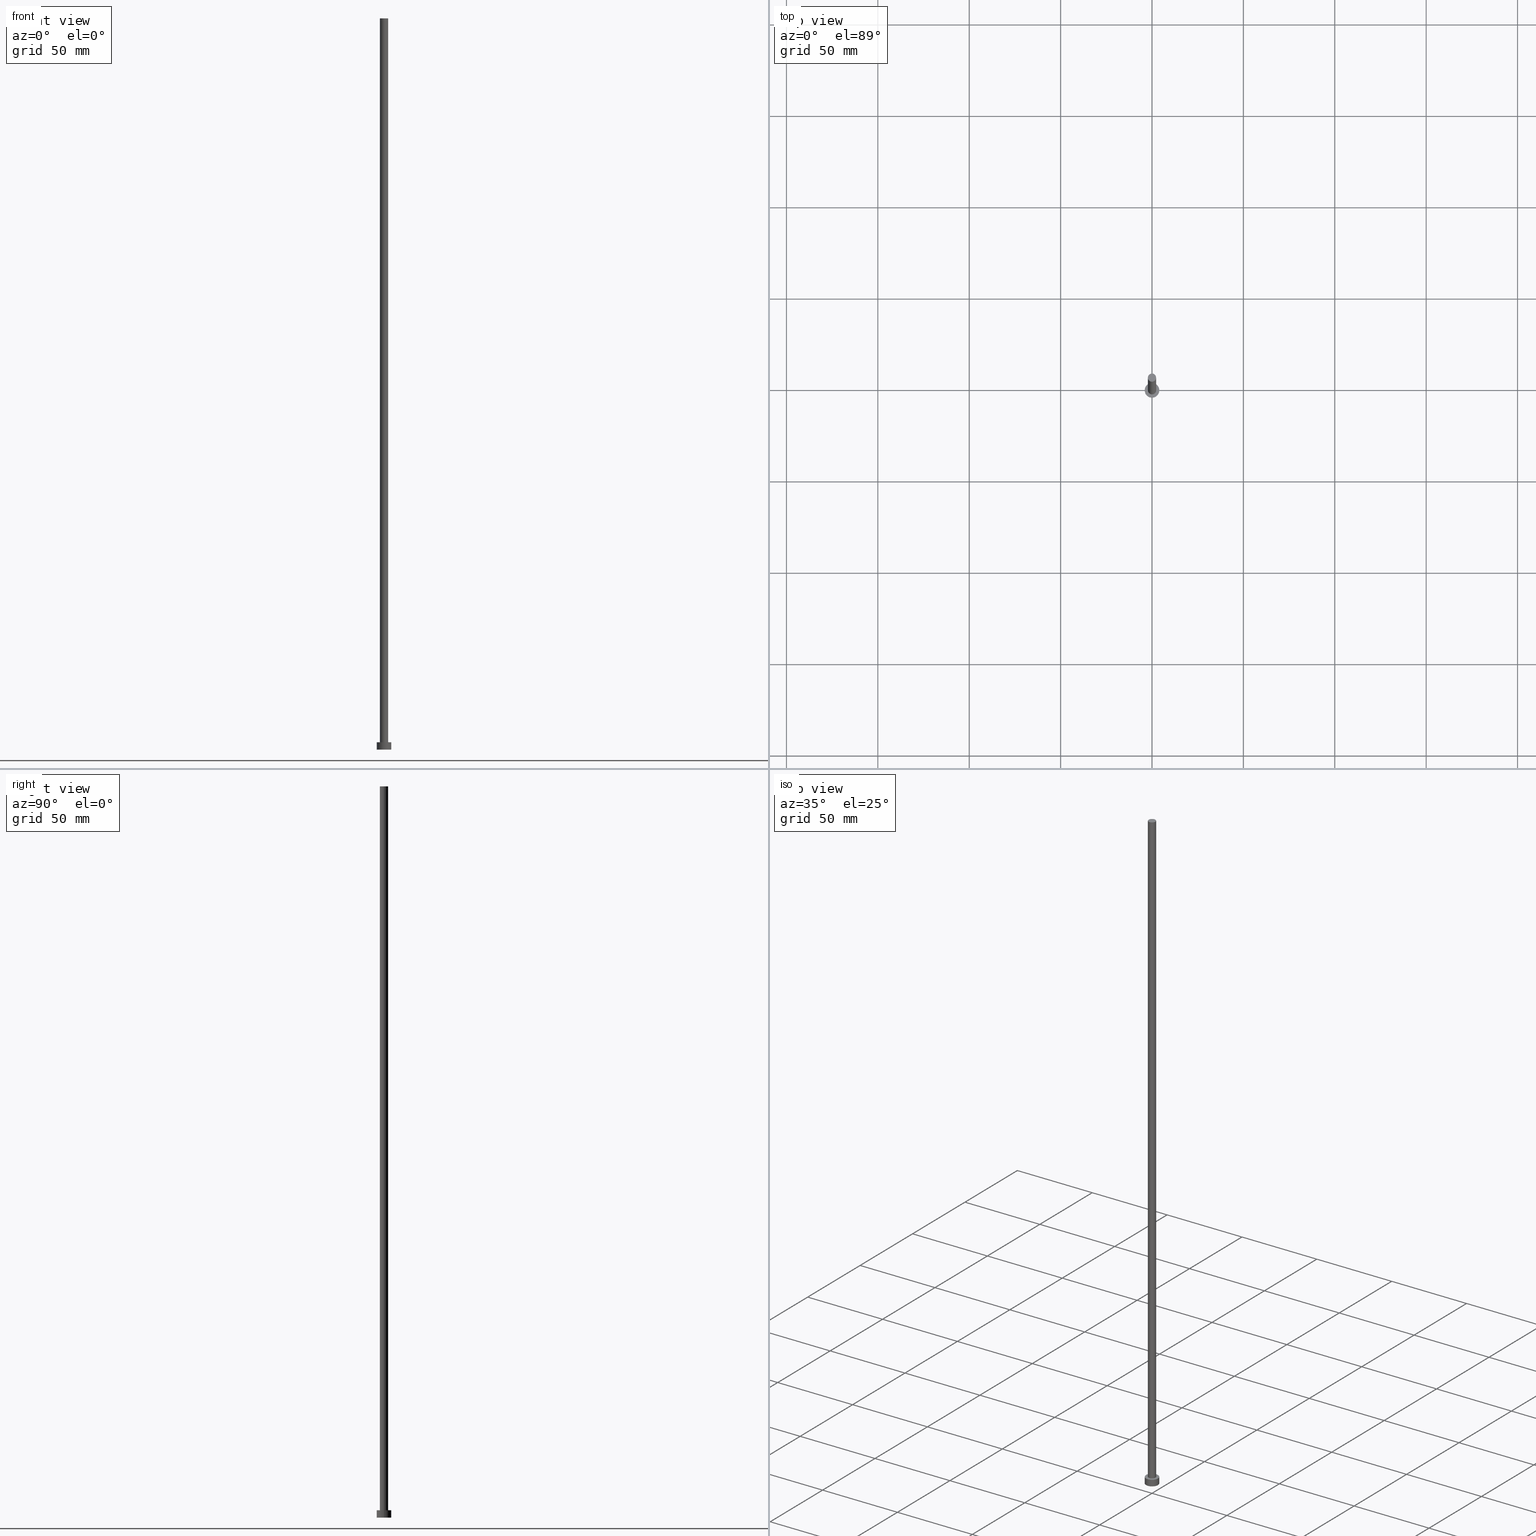
[diagram: canonical four-view strip — front | top / right | iso, engineering-drawing reading convention]
A machine part, canonical four-view strip (front | top / right | iso — engineering-drawing reading convention). The complete STEP part file that produces these views, byte-faithful:
ISO-10303-21;
HEADER;
FILE_DESCRIPTION (( 'STEP AP203' ),
    '1' );
FILE_NAME ('a4cc.STEP',
    '2023-02-13T16:19:54',
    ( '' ),
    ( '' ),
    'SwSTEP 2.0',
    'SolidWorks 2019',
    '' );
FILE_SCHEMA (( 'CONFIG_CONTROL_DESIGN' ));
ENDSEC;

DATA;
#1 = FACE_OUTER_BOUND ( 'NONE', #206, .T. ) ;
#2 = CC_DESIGN_DATE_AND_TIME_ASSIGNMENT ( #50, #146, ( #47 ) ) ;
#3 = APPROVAL_DATE_TIME ( #62, #42 ) ;
#4 = CARTESIAN_POINT ( 'NONE',  ( 4.000000000000000000, 4.898587196589412829E-16, 0.000000000000000000 ) ) ;
#5 = APPROVAL_PERSON_ORGANIZATION ( #176, #42, #59 ) ;
#6 = PERSON ( 'NEUR�EN�', 'NEUR�EN�', 'NEUR�EN�', ('NEUR�EN�'), ('NEUR�EN�'), ('NEUR�EN�') ) ;
#7 = AXIS2_PLACEMENT_3D ( 'NONE', #199, #231, #76 ) ;
#8 = CARTESIAN_POINT ( 'NONE',  ( -2.250000000000000000, 0.000000000000000000, 400.0000000000000000 ) ) ;
#9 = DIRECTION ( 'NONE',  ( -0.000000000000000000, -0.000000000000000000, -1.000000000000000000 ) ) ;
#10 = FACE_OUTER_BOUND ( 'NONE', #209, .T. ) ;
#11 = DIRECTION ( 'NONE',  ( 0.000000000000000000, 0.000000000000000000, 1.000000000000000000 ) ) ;
#12 = VERTEX_POINT ( 'NONE', #109 ) ;
#13 = APPLICATION_PROTOCOL_DEFINITION ( 'international standard', 'config_control_design', 1994, #175 ) ;
#14 = APPROVAL ( #110, 'NEUR�EN�' ) ;
#15 = ORIENTED_EDGE ( 'NONE', *, *, #138, .F. ) ;
#16 = ORIENTED_EDGE ( 'NONE', *, *, #250, .F. ) ;
#17 = CIRCLE ( 'NONE', #174, 4.000000000000000000 ) ;
#18 = DIRECTION ( 'NONE',  ( 1.000000000000000000, 0.000000000000000000, 0.000000000000000000 ) ) ;
#19 = LINE ( 'NONE', #77, #202 ) ;
#20 = MANIFOLD_SOLID_BREP ( 'P�idat vysunut�m3', #184 ) ;
#21 = AXIS2_PLACEMENT_3D ( 'NONE', #161, #234, #236 ) ;
#22 = DIRECTION ( 'NONE',  ( -0.000000000000000000, -0.000000000000000000, -1.000000000000000000 ) ) ;
#23 = ADVANCED_FACE ( 'NONE', ( #73 ), #37, .T. ) ;
#24 = CARTESIAN_POINT ( 'NONE',  ( 0.000000000000000000, 0.000000000000000000, 400.0000000000000000 ) ) ;
#25 = LOCAL_TIME ( 17, 19, 54.00000000000000000, #171 ) ;
#26 = ADVANCED_FACE ( 'NONE', ( #10 ), #88, .T. ) ;
#27 = ORIENTED_EDGE ( 'NONE', *, *, #98, .T. ) ;
#28 = DIRECTION ( 'NONE',  ( -0.000000000000000000, -0.000000000000000000, -1.000000000000000000 ) ) ;
#29 = ADVANCED_FACE ( 'NONE', ( #51 ), #126, .T. ) ;
#30 = EDGE_LOOP ( 'NONE', ( #53, #165, #204, #107 ) ) ;
#31 = AXIS2_PLACEMENT_3D ( 'NONE', #60, #197, #63 ) ;
#32 = PERSON_AND_ORGANIZATION_ROLE ( 'classification_officer' ) ;
#33 = VERTEX_POINT ( 'NONE', #4 ) ;
#34 = AXIS2_PLACEMENT_3D ( 'NONE', #220, #200, #208 ) ;
#35 = AXIS2_PLACEMENT_3D ( 'NONE', #94, #179, #177 ) ;
#36 = ORIENTED_EDGE ( 'NONE', *, *, #57, .F. ) ;
#37 = CYLINDRICAL_SURFACE ( 'NONE', #121, 2.250000000000000000 ) ;
#38 = CIRCLE ( 'NONE', #35, 2.250000000000000000 ) ;
#39 = CC_DESIGN_SECURITY_CLASSIFICATION ( #74, ( #67 ) ) ;
#40 = DIRECTION ( 'NONE',  ( -0.000000000000000000, -0.000000000000000000, -1.000000000000000000 ) ) ;
#41 = CARTESIAN_POINT ( 'NONE',  ( 0.000000000000000000, 0.000000000000000000, 0.000000000000000000 ) ) ;
#42 = APPROVAL ( #181, 'NEUR�EN�' ) ;
#43 = PLANE ( 'NONE',  #7 ) ;
#44 = DIRECTION ( 'NONE',  ( 1.000000000000000000, 0.000000000000000000, -0.000000000000000000 ) ) ;
#45 = EDGE_LOOP ( 'NONE', ( #65, #153 ) ) ;
#46 = DIRECTION ( 'NONE',  ( -0.000000000000000000, -0.000000000000000000, -1.000000000000000000 ) ) ;
#47 = PRODUCT_DEFINITION ( 'NEZN�M�', '', #67, #118 ) ;
#48 = PERSON_AND_ORGANIZATION ( #6, #103 ) ;
#49 = AXIS2_PLACEMENT_3D ( 'NONE', #229, #11, #187 ) ;
#50 = DATE_AND_TIME ( #173, #198 ) ;
#51 = FACE_OUTER_BOUND ( 'NONE', #201, .T. ) ;
#52 = APPROVAL_DATE_TIME ( #90, #14 ) ;
#53 = ORIENTED_EDGE ( 'NONE', *, *, #101, .F. ) ;
#54 = PERSON_AND_ORGANIZATION ( #6, #103 ) ;
#55 = ORIENTED_EDGE ( 'NONE', *, *, #239, .T. ) ;
#56 = ORIENTED_EDGE ( 'NONE', *, *, #141, .F. ) ;
#57 = EDGE_CURVE ( 'NONE', #120, #163, #213, .T. ) ;
#58 = AXIS2_PLACEMENT_3D ( 'NONE', #154, #116, #157 ) ;
#59 = APPROVAL_ROLE ( '' ) ;
#60 = CARTESIAN_POINT ( 'NONE',  ( 0.000000000000000000, 0.000000000000000000, 4.000000000000000000 ) ) ;
#61 = ADVANCED_FACE ( 'NONE', ( #1 ), #79, .T. ) ;
#62 = DATE_AND_TIME ( #194, #218 ) ;
#63 = DIRECTION ( 'NONE',  ( -1.000000000000000000, 0.000000000000000000, 0.000000000000000000 ) ) ;
#64 = CIRCLE ( 'NONE', #21, 4.000000000000000000 ) ;
#65 = ORIENTED_EDGE ( 'NONE', *, *, #243, .F. ) ;
#66 = ORIENTED_EDGE ( 'NONE', *, *, #101, .T. ) ;
#67 = PRODUCT_DEFINITION_FORMATION_WITH_SPECIFIED_SOURCE ( 'LIBOVOLN�', '', #252, .NOT_KNOWN. ) ;
#68 = ADVANCED_FACE ( 'NONE', ( #195 ), #235, .T. ) ;
#69 = CARTESIAN_POINT ( 'NONE',  ( 0.000000000000000000, 0.000000000000000000, 4.000000000000000000 ) ) ;
#70 = APPROVAL_ROLE ( '' ) ;
#71 = DIRECTION ( 'NONE',  ( -1.000000000000000000, 0.000000000000000000, 0.000000000000000000 ) ) ;
#72 = CALENDAR_DATE ( 2023, 13, 2 ) ;
#73 = FACE_OUTER_BOUND ( 'NONE', #30, .T. ) ;
#74 = SECURITY_CLASSIFICATION ( '', '', #122 ) ;
#75 = DATE_AND_TIME ( #247, #170 ) ;
#76 = DIRECTION ( 'NONE',  ( 1.000000000000000000, 0.000000000000000000, -0.000000000000000000 ) ) ;
#77 = CARTESIAN_POINT ( 'NONE',  ( -4.000000000000000000, 0.000000000000000000, 4.000000000000000000 ) ) ;
#78 = CARTESIAN_POINT ( 'NONE',  ( 2.250000000000000000, 2.755455298081544285E-16, 400.0000000000000000 ) ) ;
#79 = CYLINDRICAL_SURFACE ( 'NONE', #96, 2.250000000000000000 ) ;
#80 = CARTESIAN_POINT ( 'NONE',  ( 0.000000000000000000, 0.000000000000000000, 400.0000000000000000 ) ) ;
#81 = DIRECTION ( 'NONE',  ( 0.000000000000000000, 0.000000000000000000, 1.000000000000000000 ) ) ;
#82 = ORIENTED_EDGE ( 'NONE', *, *, #243, .T. ) ;
#83 = CC_DESIGN_PERSON_AND_ORGANIZATION_ASSIGNMENT ( #48, #226, ( #67 ) ) ;
#84 = CC_DESIGN_APPROVAL ( #42, ( #74 ) ) ;
#85 = ADVANCED_FACE ( 'NONE', ( #139 ), #43, .F. ) ;
#86 = CARTESIAN_POINT ( 'NONE',  ( 0.000000000000000000, 0.000000000000000000, 4.000000000000000000 ) ) ;
#87 = APPROVAL_ROLE ( '' ) ;
#88 = CYLINDRICAL_SURFACE ( 'NONE', #167, 4.000000000000000000 ) ;
#89 = APPLICATION_PROTOCOL_DEFINITION ( 'international standard', 'config_control_design', 1994, #212 ) ;
#90 = DATE_AND_TIME ( #245, #225 ) ;
#91 = ORIENTED_EDGE ( 'NONE', *, *, #250, .T. ) ;
#92 = PERSON_AND_ORGANIZATION ( #6, #103 ) ;
#93 = DIRECTION ( 'NONE',  ( -1.000000000000000000, 0.000000000000000000, 0.000000000000000000 ) ) ;
#94 = CARTESIAN_POINT ( 'NONE',  ( 0.000000000000000000, 0.000000000000000000, 4.000000000000000000 ) ) ;
#95 = PRODUCT_DEFINITION_SHAPE ( 'NONE', 'NONE',  #47 ) ;
#96 = AXIS2_PLACEMENT_3D ( 'NONE', #24, #40, #160 ) ;
#97 = CARTESIAN_POINT ( 'NONE',  ( 0.000000000000000000, 0.000000000000000000, 4.000000000000000000 ) ) ;
#98 = EDGE_CURVE ( 'NONE', #142, #151, #221, .T. ) ;
#99 = CARTESIAN_POINT ( 'NONE',  ( 4.000000000000000000, 4.898587196589412829E-16, 4.000000000000000000 ) ) ;
#100 = CARTESIAN_POINT ( 'NONE',  ( -2.250000000000000000, 0.000000000000000000, 4.000000000000000000 ) ) ;
#101 = EDGE_CURVE ( 'NONE', #163, #120, #106, .T. ) ;
#102 = LINE ( 'NONE', #99, #132 ) ;
#103 = ORGANIZATION ( 'NEUR�EN�', 'NEUR�EN�', '' ) ;
#104 = ORIENTED_EDGE ( 'NONE', *, *, #57, .T. ) ;
#105 = PRODUCT_RELATED_PRODUCT_CATEGORY ( 'detail', '', ( #252 ) ) ;
#106 = CIRCLE ( 'NONE', #178, 2.250000000000000000 ) ;
#107 = ORIENTED_EDGE ( 'NONE', *, *, #180, .F. ) ;
#108 =( LENGTH_UNIT ( ) NAMED_UNIT ( * ) SI_UNIT ( .MILLI., .METRE. ) );
#109 = CARTESIAN_POINT ( 'NONE',  ( -4.000000000000000000, 0.000000000000000000, 0.000000000000000000 ) ) ;
#110 = APPROVAL_STATUS ( 'not_yet_approved' ) ;
#111 = ORIENTED_EDGE ( 'NONE', *, *, #180, .T. ) ;
#112 = DIRECTION ( 'NONE',  ( -0.000000000000000000, -0.000000000000000000, -1.000000000000000000 ) ) ;
#113 = APPROVAL_PERSON_ORGANIZATION ( #251, #210, #70 ) ;
#114 = DIRECTION ( 'NONE',  ( 0.000000000000000000, 0.000000000000000000, 1.000000000000000000 ) ) ;
#115 = CARTESIAN_POINT ( 'NONE',  ( 4.000000000000000000, 4.898587196589412829E-16, 4.000000000000000000 ) ) ;
#116 = DIRECTION ( 'NONE',  ( 0.000000000000000000, 0.000000000000000000, 1.000000000000000000 ) ) ;
#117 = CC_DESIGN_PERSON_AND_ORGANIZATION_ASSIGNMENT ( #152, #148, ( #67 ) ) ;
#118 = DESIGN_CONTEXT ( 'detailed design', #212, 'design' ) ;
#119 = EDGE_CURVE ( 'NONE', #12, #33, #64, .T. ) ;
#120 = VERTEX_POINT ( 'NONE', #140 ) ;
#121 = AXIS2_PLACEMENT_3D ( 'NONE', #188, #112, #93 ) ;
#122 = SECURITY_CLASSIFICATION_LEVEL ( 'unclassified' ) ;
#123 = ORIENTED_EDGE ( 'NONE', *, *, #98, .F. ) ;
#124 = COORDINATED_UNIVERSAL_TIME_OFFSET ( 1, 0, .AHEAD. ) ;
#125 = MECHANICAL_CONTEXT ( 'NONE', #175, 'mechanical' ) ;
#126 = PLANE ( 'NONE',  #127 ) ;
#127 = AXIS2_PLACEMENT_3D ( 'NONE', #215, #216, #217 ) ;
#128 = CC_DESIGN_PERSON_AND_ORGANIZATION_ASSIGNMENT ( #166, #242, ( #47 ) ) ;
#129 = DATE_AND_TIME ( #72, #25 ) ;
#130 =( GEOMETRIC_REPRESENTATION_CONTEXT ( 3 ) GLOBAL_UNCERTAINTY_ASSIGNED_CONTEXT ( ( #143 ) ) GLOBAL_UNIT_ASSIGNED_CONTEXT ( ( #108, #249, #203 ) ) REPRESENTATION_CONTEXT ( 'NONE', 'WORKASPACE' ) );
#131 = PLANE ( 'NONE',  #196 ) ;
#132 = VECTOR ( 'NONE', #9, 1000.000000000000000 ) ;
#133 = ADVANCED_FACE ( 'NONE', ( #254, #219 ), #131, .T. ) ;
#134 = COORDINATED_UNIVERSAL_TIME_OFFSET ( 1, 0, .AHEAD. ) ;
#135 = DIRECTION ( 'NONE',  ( 0.000000000000000000, 0.000000000000000000, 1.000000000000000000 ) ) ;
#136 = DIRECTION ( 'NONE',  ( 1.000000000000000000, 0.000000000000000000, 0.000000000000000000 ) ) ;
#137 = SHAPE_DEFINITION_REPRESENTATION ( #95, #241 ) ;
#138 = EDGE_CURVE ( 'NONE', #151, #12, #19, .T. ) ;
#139 = FACE_OUTER_BOUND ( 'NONE', #238, .T. ) ;
#140 = CARTESIAN_POINT ( 'NONE',  ( -2.250000000000000000, 0.000000000000000000, 400.0000000000000000 ) ) ;
#141 = EDGE_CURVE ( 'NONE', #33, #12, #17, .T. ) ;
#142 = VERTEX_POINT ( 'NONE', #115 ) ;
#143 = UNCERTAINTY_MEASURE_WITH_UNIT (LENGTH_MEASURE( 1.000000000000000082E-05 ), #108, 'distance_accuracy_value', 'NONE');
#144 = VECTOR ( 'NONE', #28, 1000.000000000000000 ) ;
#145 = CC_DESIGN_DATE_AND_TIME_ASSIGNMENT ( #129, #159, ( #74 ) ) ;
#146 = DATE_TIME_ROLE ( 'creation_date' ) ;
#147 = CC_DESIGN_APPROVAL ( #210, ( #67 ) ) ;
#148 = PERSON_AND_ORGANIZATION_ROLE ( 'creator' ) ;
#149 = EDGE_CURVE ( 'NONE', #172, #190, #38, .T. ) ;
#150 = PERSON_AND_ORGANIZATION_ROLE ( 'design_owner' ) ;
#151 = VERTEX_POINT ( 'NONE', #255 ) ;
#152 = PERSON_AND_ORGANIZATION ( #6, #103 ) ;
#153 = ORIENTED_EDGE ( 'NONE', *, *, #149, .F. ) ;
#154 = CARTESIAN_POINT ( 'NONE',  ( 0.000000000000000000, 0.000000000000000000, 400.0000000000000000 ) ) ;
#155 = CC_DESIGN_PERSON_AND_ORGANIZATION_ASSIGNMENT ( #207, #32, ( #74 ) ) ;
#156 = AXIS2_PLACEMENT_3D ( 'NONE', #97, #214, #183 ) ;
#157 = DIRECTION ( 'NONE',  ( 1.000000000000000000, 0.000000000000000000, 0.000000000000000000 ) ) ;
#158 = LINE ( 'NONE', #8, #144 ) ;
#159 = DATE_TIME_ROLE ( 'classification_date' ) ;
#160 = DIRECTION ( 'NONE',  ( -1.000000000000000000, 0.000000000000000000, 0.000000000000000000 ) ) ;
#161 = CARTESIAN_POINT ( 'NONE',  ( 0.000000000000000000, 0.000000000000000000, 0.000000000000000000 ) ) ;
#162 = VECTOR ( 'NONE', #46, 1000.000000000000000 ) ;
#163 = VERTEX_POINT ( 'NONE', #78 ) ;
#164 = ORIENTED_EDGE ( 'NONE', *, *, #239, .F. ) ;
#165 = ORIENTED_EDGE ( 'NONE', *, *, #182, .T. ) ;
#166 = PERSON_AND_ORGANIZATION ( #6, #103 ) ;
#167 = AXIS2_PLACEMENT_3D ( 'NONE', #69, #169, #71 ) ;
#168 = COORDINATED_UNIVERSAL_TIME_OFFSET ( 1, 0, .AHEAD. ) ;
#169 = DIRECTION ( 'NONE',  ( -0.000000000000000000, -0.000000000000000000, -1.000000000000000000 ) ) ;
#170 = LOCAL_TIME ( 17, 19, 54.00000000000000000, #124 ) ;
#171 = COORDINATED_UNIVERSAL_TIME_OFFSET ( 1, 0, .AHEAD. ) ;
#172 = VERTEX_POINT ( 'NONE', #253 ) ;
#173 = CALENDAR_DATE ( 2023, 13, 2 ) ;
#174 = AXIS2_PLACEMENT_3D ( 'NONE', #41, #192, #18 ) ;
#175 = APPLICATION_CONTEXT ( 'configuration controlled 3d designs of mechanical parts and assemblies' ) ;
#176 = PERSON_AND_ORGANIZATION ( #6, #103 ) ;
#177 = DIRECTION ( 'NONE',  ( 1.000000000000000000, 0.000000000000000000, 0.000000000000000000 ) ) ;
#178 = AXIS2_PLACEMENT_3D ( 'NONE', #80, #114, #136 ) ;
#179 = DIRECTION ( 'NONE',  ( 0.000000000000000000, 0.000000000000000000, 1.000000000000000000 ) ) ;
#180 = EDGE_CURVE ( 'NONE', #120, #190, #158, .T. ) ;
#181 = APPROVAL_STATUS ( 'not_yet_approved' ) ;
#182 = EDGE_CURVE ( 'NONE', #163, #172, #223, .T. ) ;
#183 = DIRECTION ( 'NONE',  ( 1.000000000000000000, 0.000000000000000000, 0.000000000000000000 ) ) ;
#184 = CLOSED_SHELL ( 'NONE', ( #23, #26, #68, #133, #85, #61, #29 ) ) ;
#185 = AXIS2_PLACEMENT_3D ( 'NONE', #86, #81, #237 ) ;
#186 = ORIENTED_EDGE ( 'NONE', *, *, #141, .T. ) ;
#187 = DIRECTION ( 'NONE',  ( 1.000000000000000000, 0.000000000000000000, 0.000000000000000000 ) ) ;
#188 = CARTESIAN_POINT ( 'NONE',  ( 0.000000000000000000, 0.000000000000000000, 400.0000000000000000 ) ) ;
#189 = COORDINATED_UNIVERSAL_TIME_OFFSET ( 1, 0, .AHEAD. ) ;
#190 = VERTEX_POINT ( 'NONE', #100 ) ;
#191 = CC_DESIGN_PERSON_AND_ORGANIZATION_ASSIGNMENT ( #92, #150, ( #252 ) ) ;
#192 = DIRECTION ( 'NONE',  ( 0.000000000000000000, 0.000000000000000000, 1.000000000000000000 ) ) ;
#193 = CIRCLE ( 'NONE', #185, 2.250000000000000000 ) ;
#194 = CALENDAR_DATE ( 2023, 13, 2 ) ;
#195 = FACE_OUTER_BOUND ( 'NONE', #230, .T. ) ;
#196 = AXIS2_PLACEMENT_3D ( 'NONE', #232, #135, #44 ) ;
#197 = DIRECTION ( 'NONE',  ( -0.000000000000000000, -0.000000000000000000, -1.000000000000000000 ) ) ;
#198 = LOCAL_TIME ( 17, 19, 54.00000000000000000, #189 ) ;
#199 = CARTESIAN_POINT ( 'NONE',  ( 0.000000000000000000, 0.000000000000000000, 0.000000000000000000 ) ) ;
#200 = DIRECTION ( 'NONE',  ( 0.000000000000000000, 0.000000000000000000, 1.000000000000000000 ) ) ;
#201 = EDGE_LOOP ( 'NONE', ( #104, #66 ) ) ;
#202 = VECTOR ( 'NONE', #22, 1000.000000000000000 ) ;
#203 =( NAMED_UNIT ( * ) SI_UNIT ( $, .STERADIAN. ) SOLID_ANGLE_UNIT ( ) );
#204 = ORIENTED_EDGE ( 'NONE', *, *, #149, .T. ) ;
#205 = APPROVAL_DATE_TIME ( #75, #210 ) ;
#206 = EDGE_LOOP ( 'NONE', ( #248, #36, #111, #82 ) ) ;
#207 = PERSON_AND_ORGANIZATION ( #6, #103 ) ;
#208 = DIRECTION ( 'NONE',  ( 1.000000000000000000, 0.000000000000000000, 0.000000000000000000 ) ) ;
#209 = EDGE_LOOP ( 'NONE', ( #123, #55, #186, #15 ) ) ;
#210 = APPROVAL ( #224, 'NEUR�EN�' ) ;
#211 = EDGE_LOOP ( 'NONE', ( #91, #27 ) ) ;
#212 = APPLICATION_CONTEXT ( 'configuration controlled 3d designs of mechanical parts and assemblies' ) ;
#213 = CIRCLE ( 'NONE', #58, 2.250000000000000000 ) ;
#214 = DIRECTION ( 'NONE',  ( 0.000000000000000000, 0.000000000000000000, 1.000000000000000000 ) ) ;
#215 = CARTESIAN_POINT ( 'NONE',  ( 0.000000000000000000, 0.000000000000000000, 400.0000000000000000 ) ) ;
#216 = DIRECTION ( 'NONE',  ( 0.000000000000000000, 0.000000000000000000, 1.000000000000000000 ) ) ;
#217 = DIRECTION ( 'NONE',  ( 1.000000000000000000, 0.000000000000000000, -0.000000000000000000 ) ) ;
#218 = LOCAL_TIME ( 17, 19, 54.00000000000000000, #134 ) ;
#219 = FACE_OUTER_BOUND ( 'NONE', #211, .T. ) ;
#220 = CARTESIAN_POINT ( 'NONE',  ( 0.000000000000000000, 0.000000000000000000, 4.000000000000000000 ) ) ;
#221 = CIRCLE ( 'NONE', #156, 4.000000000000000000 ) ;
#222 = ORIENTED_EDGE ( 'NONE', *, *, #138, .T. ) ;
#223 = LINE ( 'NONE', #240, #162 ) ;
#224 = APPROVAL_STATUS ( 'not_yet_approved' ) ;
#225 = LOCAL_TIME ( 17, 19, 54.00000000000000000, #168 ) ;
#226 = PERSON_AND_ORGANIZATION_ROLE ( 'design_supplier' ) ;
#227 = ORIENTED_EDGE ( 'NONE', *, *, #119, .F. ) ;
#228 = ORIENTED_EDGE ( 'NONE', *, *, #119, .T. ) ;
#229 = CARTESIAN_POINT ( 'NONE',  ( 0.000000000000000000, 0.000000000000000000, 0.000000000000000000 ) ) ;
#230 = EDGE_LOOP ( 'NONE', ( #164, #16, #222, #228 ) ) ;
#231 = DIRECTION ( 'NONE',  ( 0.000000000000000000, 0.000000000000000000, 1.000000000000000000 ) ) ;
#232 = CARTESIAN_POINT ( 'NONE',  ( 0.000000000000000000, 0.000000000000000000, 4.000000000000000000 ) ) ;
#233 = APPROVAL_PERSON_ORGANIZATION ( #54, #14, #87 ) ;
#234 = DIRECTION ( 'NONE',  ( 0.000000000000000000, 0.000000000000000000, 1.000000000000000000 ) ) ;
#235 = CYLINDRICAL_SURFACE ( 'NONE', #31, 4.000000000000000000 ) ;
#236 = DIRECTION ( 'NONE',  ( 1.000000000000000000, 0.000000000000000000, 0.000000000000000000 ) ) ;
#237 = DIRECTION ( 'NONE',  ( 1.000000000000000000, 0.000000000000000000, 0.000000000000000000 ) ) ;
#238 = EDGE_LOOP ( 'NONE', ( #227, #56 ) ) ;
#239 = EDGE_CURVE ( 'NONE', #142, #33, #102, .T. ) ;
#240 = CARTESIAN_POINT ( 'NONE',  ( 2.250000000000000000, 2.755455298081544285E-16, 400.0000000000000000 ) ) ;
#241 = ADVANCED_BREP_SHAPE_REPRESENTATION ( 'a4cc', ( #20, #49 ), #130 ) ;
#242 = PERSON_AND_ORGANIZATION_ROLE ( 'creator' ) ;
#243 = EDGE_CURVE ( 'NONE', #190, #172, #193, .T. ) ;
#244 = CIRCLE ( 'NONE', #34, 4.000000000000000000 ) ;
#245 = CALENDAR_DATE ( 2023, 13, 2 ) ;
#246 = CC_DESIGN_APPROVAL ( #14, ( #47 ) ) ;
#247 = CALENDAR_DATE ( 2023, 13, 2 ) ;
#248 = ORIENTED_EDGE ( 'NONE', *, *, #182, .F. ) ;
#249 =( NAMED_UNIT ( * ) PLANE_ANGLE_UNIT ( ) SI_UNIT ( $, .RADIAN. ) );
#250 = EDGE_CURVE ( 'NONE', #151, #142, #244, .T. ) ;
#251 = PERSON_AND_ORGANIZATION ( #6, #103 ) ;
#252 = PRODUCT ( 'a4cc', 'a4cc', '', ( #125 ) ) ;
#253 = CARTESIAN_POINT ( 'NONE',  ( 2.250000000000000000, 2.755455298081544285E-16, 4.000000000000000000 ) ) ;
#254 = FACE_BOUND ( 'NONE', #45, .T. ) ;
#255 = CARTESIAN_POINT ( 'NONE',  ( -4.000000000000000000, 0.000000000000000000, 4.000000000000000000 ) ) ;
ENDSEC;
END-ISO-10303-21;
